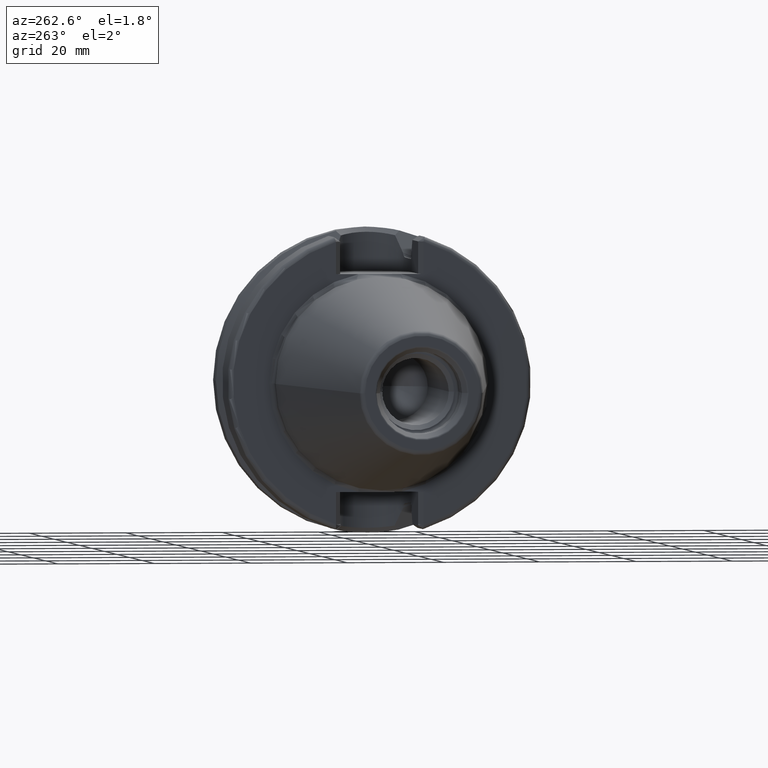
[diagram: clean part render]
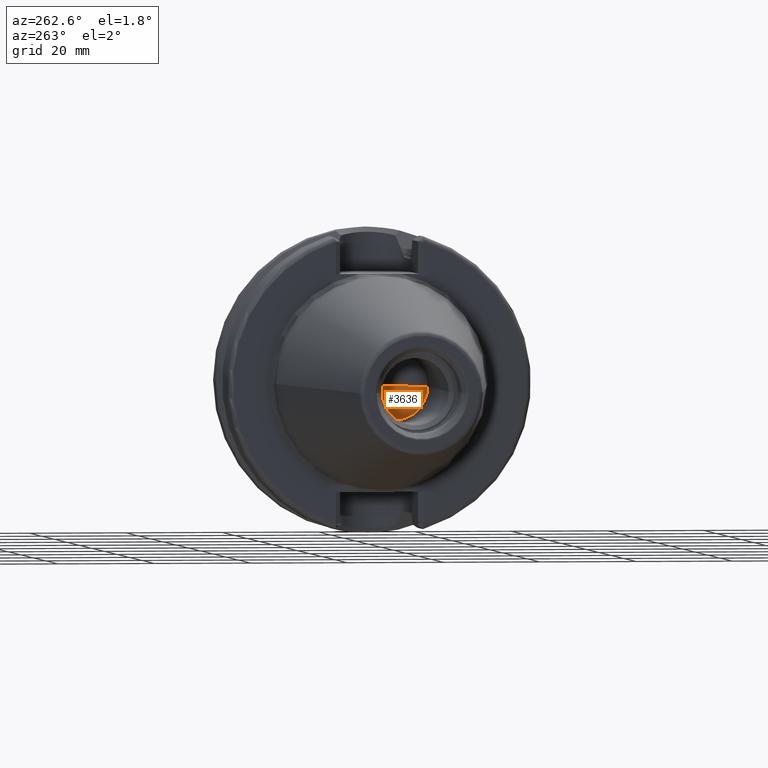
[diagram: same view with one face highlighted and labeled with its STEP entity id]
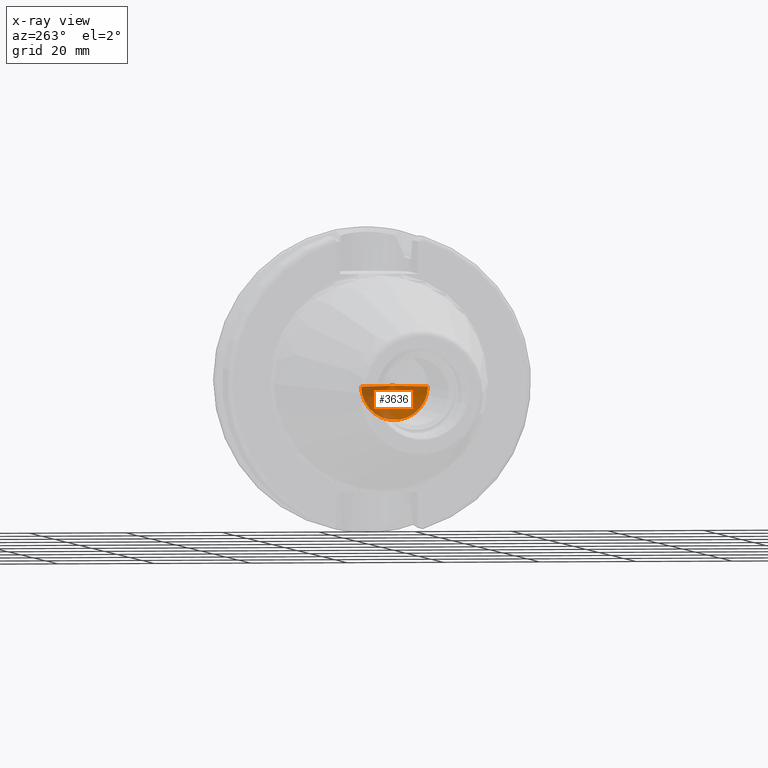
[diagram: x-ray of the same camera — body ghosted, the highlighted face saturated]
A machine part, auxiliary view. The second image highlights one B-rep face of the part: STEP entity #3636.
The next image is the same camera in x-ray: the body ghosted, the highlighted face saturated — about 34% of this face is hidden behind the body in this view.
In plain terms, the highlighted conical surface has half-angle 59 deg.
Its self-contained STEP definition (entity closure, byte-faithful):
#1354=CARTESIAN_POINT('',(-2.14E1,0.E0,0.E0));
#1355=DIRECTION('',(-1.E0,0.E0,0.E0));
#1356=DIRECTION('',(0.E0,1.E0,0.E0));
#1357=AXIS2_PLACEMENT_3D('',#1354,#1355,#1356);
#1368=DIRECTION('',(-5.150380749101E-1,8.571673007021E-1,0.E0));
#1369=VECTOR('',#1368,8.073103108730E0);
#1370=CARTESIAN_POINT('',(-1.724204451633E1,0.E0,0.E0));
#1371=LINE('',#1370,#1369);
#1372=DIRECTION('',(-5.150380749101E-1,-8.571673007021E-1,0.E0));
#1373=VECTOR('',#1372,8.073103108730E0);
#1374=CARTESIAN_POINT('',(-1.724204451633E1,0.E0,0.E0));
#1375=LINE('',#1374,#1373);
#1460=CARTESIAN_POINT('',(-1.724204451633E1,0.E0,0.E0));
#1461=CARTESIAN_POINT('',(-2.14E1,6.92E0,0.E0));
#1462=VERTEX_POINT('',#1460);
#1463=VERTEX_POINT('',#1461);
#1484=CARTESIAN_POINT('',(-2.14E1,-6.92E0,0.E0));
#1485=VERTEX_POINT('',#1484);
#3626=CARTESIAN_POINT('',(-1.932102225816E1,0.E0,0.E0));
#3627=DIRECTION('',(-1.E0,0.E0,0.E0));
#3628=DIRECTION('',(0.E0,1.E0,0.E0));
#3629=AXIS2_PLACEMENT_3D('',#3626,#3627,#3628);
#3630=CONICAL_SURFACE('',#3629,3.46E0,5.9E1);
#3631=ORIENTED_EDGE('',*,*,#3618,.F.);
#3632=ORIENTED_EDGE('',*,*,#3621,.T.);
#3633=ORIENTED_EDGE('',*,*,#3592,.F.);
#3634=EDGE_LOOP('',(#3631,#3632,#3633));
#3635=FACE_OUTER_BOUND('',#3634,.F.);
#3636=ADVANCED_FACE('',(#3635),#3630,.F.);
#1358=CIRCLE('',#1357,6.92E0);
#3592=EDGE_CURVE('',#1463,#1485,#1358,.T.);
#3618=EDGE_CURVE('',#1462,#1463,#1371,.T.);
#3621=EDGE_CURVE('',#1462,#1485,#1375,.T.);